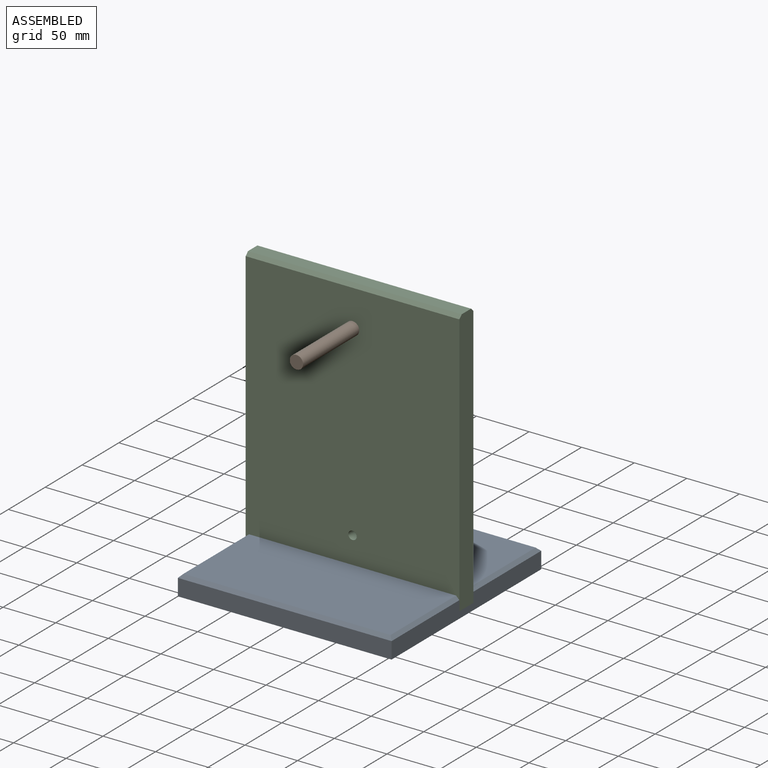
[diagram: assembled view]
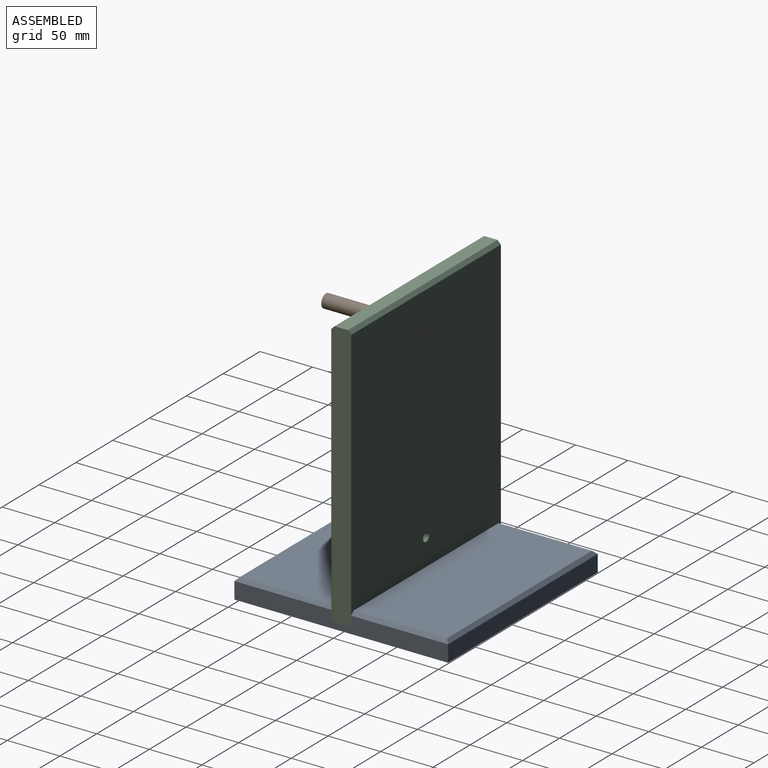
[diagram: assembled view, second angle]
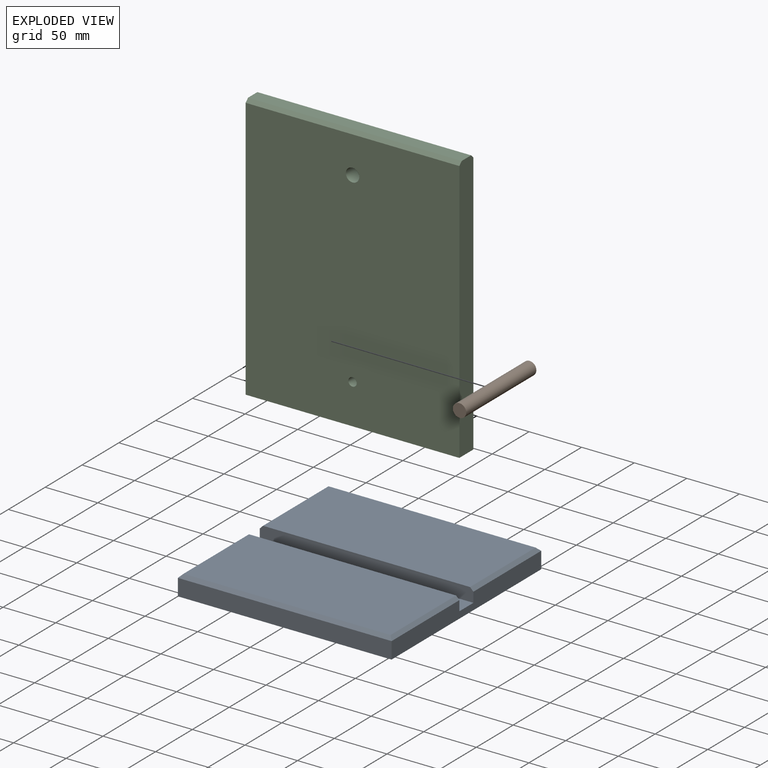
[diagram: exploded view]
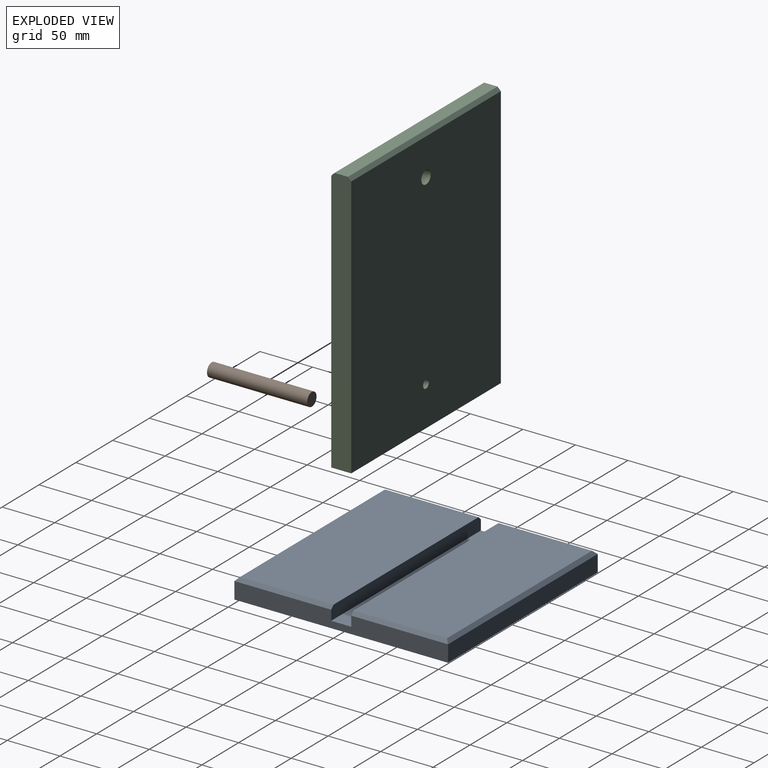
[diagram: exploded view, second angle]
ASSEMBLY  parts=3 mates=2
PART A: 16 faces, bbox 203.2x203.2x19.1 mm
  f0: plane 196.85x88.9mm, normal (0,0,1), area 17500mm2, adj f9,f13,f14,f15
  f1: plane 203.2x15.88mm, normal (1,0,0), area 3044.3mm2, adj f3,f4,f6,f7,f8,f9,f12,f15
  f2: plane 203.2x15.88mm, normal (-1,0,0), area 3044.3mm2, adj f3,f4,f6,f7,f8,f9,f10,f13
  f3: plane 203.2x15.88mm, normal (0,-1,0), area 3225.8mm2, adj f1,f2,f6,f14
  f4: plane 203.2x15.88mm, normal (0,1,0), area 3225.8mm2, adj f1,f2,f6,f11
  f5: plane 196.85x88.9mm, normal (0,0,1), area 17500mm2, adj f7,f10,f11,f12
  f6: plane 203.2x203.2mm, normal (0,0,-1), area 41290.2mm2, adj f1,f2,f3,f4
  f7: plane 203.2x12.7mm, normal (0,-1,0), area 2570.6mm2, adj f1,f2,f5,f8,f10,f12
  f8: plane 203.2x19.05mm, normal (0,0,1), area 3871mm2, adj f1,f2,f7,f9
  f9: plane 203.2x12.7mm, normal (0,1,0), area 2570.6mm2, adj f0,f1,f2,f8,f13,f15
  f10: plane 92.08x3.18mm, normal (-0.71,0,0.71), area 406.3mm2, adj f2,f5,f7,f11
  f11: plane 203.2x3.18mm, normal (0,0.71,0.71), area 898.1mm2, adj f4,f5,f10,f12
  f12: plane 92.08x3.18mm, normal (0.71,0,0.71), area 406.3mm2, adj f1,f5,f7,f11
  f13: plane 92.08x3.18mm, normal (-0.71,0,0.71), area 406.3mm2, adj f0,f2,f9,f14
  f14: plane 203.2x3.18mm, normal (0,-0.71,0.71), area 898.1mm2, adj f0,f3,f13,f15
  f15: plane 92.08x3.18mm, normal (0.71,0,0.71), area 406.3mm2, adj f0,f1,f9,f14
PART B: 3 faces, bbox 12.7x12.7x95.3 mm
  f0: cylinder r=6.35mm len=95.25mm, axis (0,0,-1), area 3800.3mm2, adj f1,f2
  f1: plane 12.7x12.7mm, normal (0,0,1), area 126.7mm2, adj f0
  f2: plane 12.7x12.7mm, normal (0,0,-1), area 126.7mm2, adj f0
PART C: 10 faces, bbox 203.2x254x19.1 mm
  f0: plane 254x19.05mm, normal (-1,0,0), area 4828.6mm2, adj f1,f3,f4,f5,f6,f7
  f1: plane 203.2x19.05mm, normal (0,-1,0), area 3871mm2, adj f0,f2,f4,f5
  f2: plane 254x19.05mm, normal (1,0,0), area 4828.6mm2, adj f1,f3,f4,f5,f6,f7
  f3: plane 203.2x12.7mm, normal (0,1,0), area 2580.6mm2, adj f0,f2,f6,f7
  f4: plane 250.83x203.2mm, normal (0,0,1), area 50790.7mm2, adj f0,f1,f2,f7,f8,f9
  f5: plane 250.83x203.2mm, normal (0,0,-1), area 50790.7mm2, adj f0,f1,f2,f6,f8,f9
  f6: plane 203.2x3.18mm, normal (0,0.71,-0.71), area 912.4mm2, adj f0,f2,f3,f5
  f7: plane 203.2x3.18mm, normal (0,0.71,0.71), area 912.4mm2, adj f0,f2,f3,f4
  f8: cylinder r=4mm len=19.05mm, axis (0,0,1), area 478.8mm2, adj f4,f5
  f9: cylinder r=6.35mm len=19.05mm, axis (0,0,1), area 760.1mm2, adj f4,f5
PLACE A t=(-185.9,26.99,-27.46)mm
PLACE B rot(axis=(-1,0,0),90deg) t=(-352.32,-97.56,279.06)mm
PLACE C rot(axis=(1,0,0),90deg) t=(-465.42,-2.31,232.89)mm
MATE fastened B.f0 <-> C.f9  axis (0,1,0) through (-257.79,-2.31,194.79)mm
MATE fastened C.f1 <-> A.f8  axis (0,0,-1) through (-257.79,-11.83,-21.11)mm
